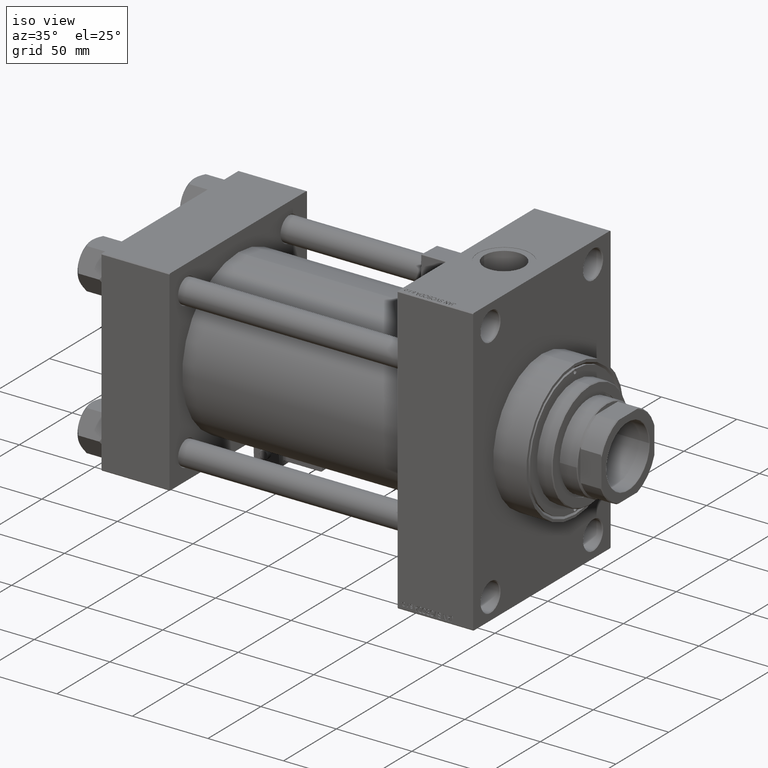
[diagram: clean part render]
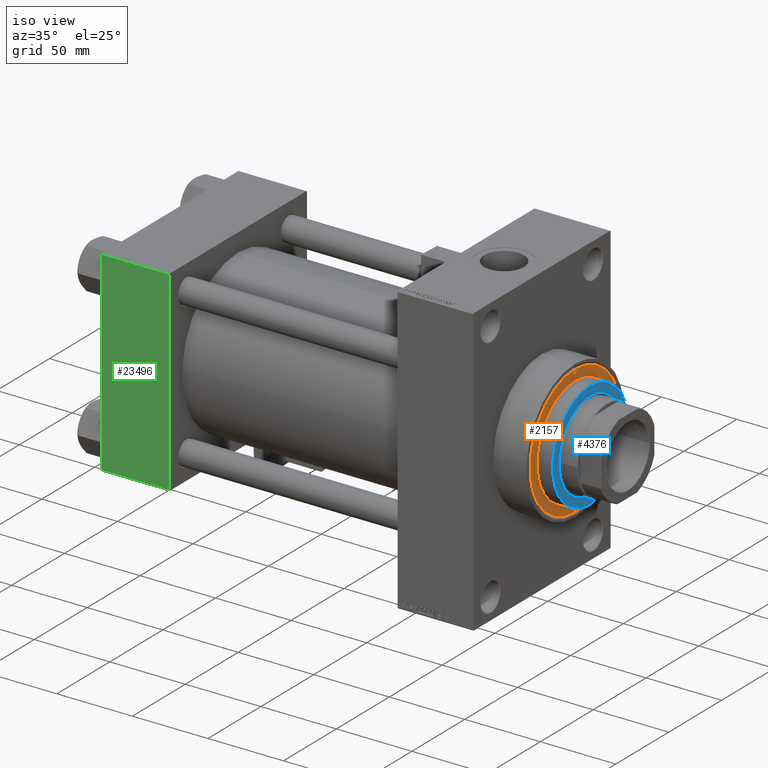
[diagram: same view with three faces highlighted in distinct colors, each labeled with its STEP entity id]
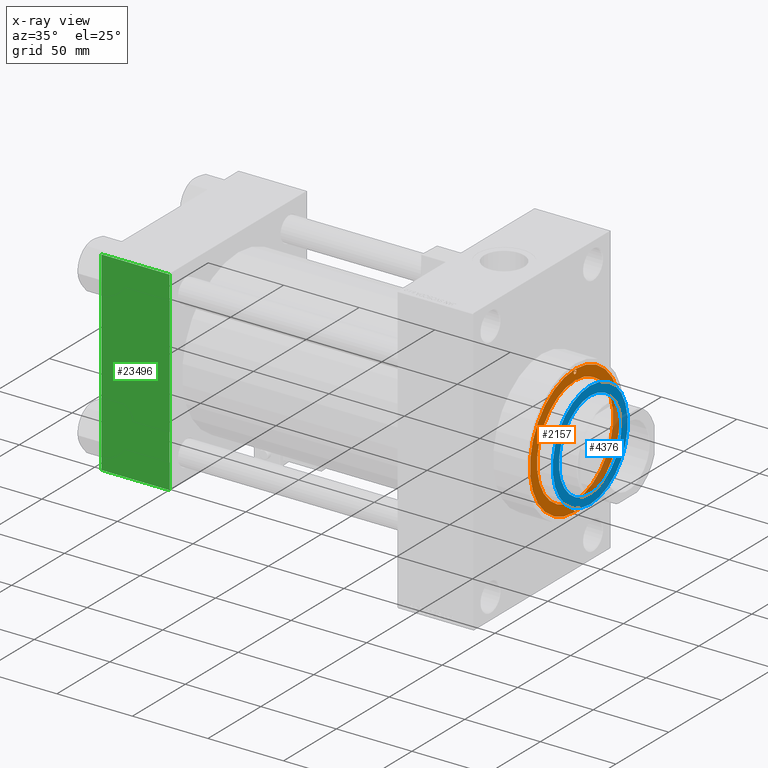
[diagram: x-ray of the same camera — body ghosted, the three highlighted faces saturated]
A machine part, iso view with three faces highlighted in distinct colors.
The next image is the same camera in x-ray (body ghosted, the three faces saturated) — at least one of them is partly hidden behind the body in this view.
Their STEP definitions:

[orange] entity #2157 — the highlighted planar face has unit normal (1, -0, -0).
#452 = CARTESIAN_POINT ( 'NONE',  ( -41.00000000000000000, 0.000000000000000000, 43.25999999999999801 ) ) ;
#1025 = FACE_BOUND ( 'NONE', #45578, .T. ) ;
#1088 = AXIS2_PLACEMENT_3D ( 'NONE', #1531, #9628, #36503 ) ;
#1391 = AXIS2_PLACEMENT_3D ( 'NONE', #6120, #41621, #34013 ) ;
#1531 = CARTESIAN_POINT ( 'NONE',  ( 0.000000000000000000, 0.000000000000000000, 43.25999999999999801 ) ) ;
#2157 = ADVANCED_FACE ( 'NONE', ( #9132, #8883, #1025, #31932 ), #47419, .T. ) ;
#2882 = EDGE_CURVE ( 'NONE', #6872, #46403, #11646, .T. ) ;
#2909 = CARTESIAN_POINT ( 'NONE',  ( 0.000000000000000000, 0.000000000000000000, 43.25999999999999801 ) ) ;
#3455 = EDGE_CURVE ( 'NONE', #20492, #46248, #14878, .T. ) ;
#4723 = DIRECTION ( 'NONE',  ( 1.000000000000000000, 0.000000000000000000, 0.000000000000000000 ) ) ;
#5813 = CIRCLE ( 'NONE', #23650, 42.75000000000000000 ) ;
#6120 = CARTESIAN_POINT ( 'NONE',  ( 0.000000000000000000, 0.000000000000000000, 43.25999999999999801 ) ) ;
#6872 = VERTEX_POINT ( 'NONE', #25089 ) ;
#7976 = AXIS2_PLACEMENT_3D ( 'NONE', #452, #15902, #36192 ) ;
#8465 = CARTESIAN_POINT ( 'NONE',  ( -42.75000000000000000, 0.000000000000000000, 43.25999999999999801 ) ) ;
#8786 = EDGE_CURVE ( 'NONE', #46403, #6872, #23204, .T. ) ;
#8883 = FACE_BOUND ( 'NONE', #12037, .T. ) ;
#9132 = FACE_BOUND ( 'NONE', #10177, .T. ) ;
#9628 = DIRECTION ( 'NONE',  ( 0.000000000000000000, 0.000000000000000000, 1.000000000000000000 ) ) ;
#10177 = EDGE_LOOP ( 'NONE', ( #15130, #34008 ) ) ;
#10585 = DIRECTION ( 'NONE',  ( -0.000000000000000000, -0.000000000000000000, 1.000000000000000000 ) ) ;
#11226 = DIRECTION ( 'NONE',  ( 1.000000000000000000, 0.000000000000000000, 0.000000000000000000 ) ) ;
#11344 = DIRECTION ( 'NONE',  ( 0.000000000000000000, 0.000000000000000000, 1.000000000000000000 ) ) ;
#11646 = CIRCLE ( 'NONE', #27043, 36.00000000000000000 ) ;
#12037 = EDGE_LOOP ( 'NONE', ( #13024, #34357 ) ) ;
#13024 = ORIENTED_EDGE ( 'NONE', *, *, #3455, .F. ) ;
#14500 = CARTESIAN_POINT ( 'NONE',  ( 42.75000000000000000, 5.235365066354935472E-15, 43.25999999999999801 ) ) ;
#14878 = CIRCLE ( 'NONE', #35107, 1.250000000000001110 ) ;
#15130 = ORIENTED_EDGE ( 'NONE', *, *, #26762, .F. ) ;
#15521 = EDGE_CURVE ( 'NONE', #46248, #20492, #15970, .T. ) ;
#15595 = DIRECTION ( 'NONE',  ( -0.000000000000000000, -0.000000000000000000, 1.000000000000000000 ) ) ;
#15902 = DIRECTION ( 'NONE',  ( -0.000000000000000000, -0.000000000000000000, 1.000000000000000000 ) ) ;
#15970 = CIRCLE ( 'NONE', #20868, 1.250000000000001110 ) ;
#16762 = CARTESIAN_POINT ( 'NONE',  ( 39.75000000000000000, 1.530808498934193050E-16, 43.25999999999999801 ) ) ;
#17339 = DIRECTION ( 'NONE',  ( 0.000000000000000000, 0.000000000000000000, 1.000000000000000000 ) ) ;
#17856 = EDGE_CURVE ( 'NONE', #47775, #32631, #5813, .T. ) ;
#18140 = EDGE_LOOP ( 'NONE', ( #24490, #32795 ) ) ;
#19820 = ORIENTED_EDGE ( 'NONE', *, *, #8786, .F. ) ;
#19888 = CARTESIAN_POINT ( 'NONE',  ( -41.00000000000000000, 0.000000000000000000, 43.25999999999999801 ) ) ;
#20492 = VERTEX_POINT ( 'NONE', #48688 ) ;
#20666 = DIRECTION ( 'NONE',  ( 0.000000000000000000, 0.000000000000000000, 1.000000000000000000 ) ) ;
#20868 = AXIS2_PLACEMENT_3D ( 'NONE', #30476, #30728, #11226 ) ;
#21668 = DIRECTION ( 'NONE',  ( 1.000000000000000000, 0.000000000000000000, 0.000000000000000000 ) ) ;
#22829 = CARTESIAN_POINT ( 'NONE',  ( -42.25000000000000000, 1.530808498934193050E-16, 43.25999999999999801 ) ) ;
#23011 = DIRECTION ( 'NONE',  ( 1.000000000000000000, 0.000000000000000000, 0.000000000000000000 ) ) ;
#23204 = CIRCLE ( 'NONE', #36153, 36.00000000000000000 ) ;
#23650 = AXIS2_PLACEMENT_3D ( 'NONE', #30845, #11344, #23011 ) ;
#24490 = ORIENTED_EDGE ( 'NONE', *, *, #17856, .T. ) ;
#25089 = CARTESIAN_POINT ( 'NONE',  ( -36.00000000000000000, 0.000000000000000000, 43.25999999999999801 ) ) ;
#26301 = CARTESIAN_POINT ( 'NONE',  ( 41.00000000000000000, 0.000000000000000000, 43.25999999999999801 ) ) ;
#26643 = CARTESIAN_POINT ( 'NONE',  ( 36.00000000000000000, 4.408728476930470856E-15, 43.25999999999999801 ) ) ;
#26750 = ORIENTED_EDGE ( 'NONE', *, *, #2882, .F. ) ;
#26762 = EDGE_CURVE ( 'NONE', #33851, #27849, #43410, .T. ) ;
#27043 = AXIS2_PLACEMENT_3D ( 'NONE', #2909, #17339, #21668 ) ;
#27191 = AXIS2_PLACEMENT_3D ( 'NONE', #19888, #15595, #28005 ) ;
#27849 = VERTEX_POINT ( 'NONE', #22829 ) ;
#28005 = DIRECTION ( 'NONE',  ( 1.000000000000000000, 0.000000000000000000, 0.000000000000000000 ) ) ;
#30476 = CARTESIAN_POINT ( 'NONE',  ( 41.00000000000000000, 0.000000000000000000, 43.25999999999999801 ) ) ;
#30728 = DIRECTION ( 'NONE',  ( -0.000000000000000000, -0.000000000000000000, 1.000000000000000000 ) ) ;
#30845 = CARTESIAN_POINT ( 'NONE',  ( 0.000000000000000000, 0.000000000000000000, 43.25999999999999801 ) ) ;
#30892 = CARTESIAN_POINT ( 'NONE',  ( -39.75000000000000000, 0.000000000000000000, 43.25999999999999801 ) ) ;
#31932 = FACE_OUTER_BOUND ( 'NONE', #18140, .T. ) ;
#32128 = EDGE_CURVE ( 'NONE', #32631, #47775, #43480, .T. ) ;
#32631 = VERTEX_POINT ( 'NONE', #14500 ) ;
#32795 = ORIENTED_EDGE ( 'NONE', *, *, #32128, .T. ) ;
#33851 = VERTEX_POINT ( 'NONE', #30892 ) ;
#34008 = ORIENTED_EDGE ( 'NONE', *, *, #35631, .F. ) ;
#34013 = DIRECTION ( 'NONE',  ( 1.000000000000000000, 0.000000000000000000, 0.000000000000000000 ) ) ;
#34357 = ORIENTED_EDGE ( 'NONE', *, *, #15521, .F. ) ;
#35107 = AXIS2_PLACEMENT_3D ( 'NONE', #26301, #10585, #41770 ) ;
#35631 = EDGE_CURVE ( 'NONE', #27849, #33851, #48489, .T. ) ;
#36153 = AXIS2_PLACEMENT_3D ( 'NONE', #40203, #20666, #4723 ) ;
#36192 = DIRECTION ( 'NONE',  ( 1.000000000000000000, 0.000000000000000000, 0.000000000000000000 ) ) ;
#36503 = DIRECTION ( 'NONE',  ( 1.000000000000000000, 0.000000000000000000, -0.000000000000000000 ) ) ;
#40203 = CARTESIAN_POINT ( 'NONE',  ( 0.000000000000000000, 0.000000000000000000, 43.25999999999999801 ) ) ;
#41621 = DIRECTION ( 'NONE',  ( 0.000000000000000000, 0.000000000000000000, 1.000000000000000000 ) ) ;
#41770 = DIRECTION ( 'NONE',  ( 1.000000000000000000, 0.000000000000000000, 0.000000000000000000 ) ) ;
#43410 = CIRCLE ( 'NONE', #27191, 1.250000000000001110 ) ;
#43480 = CIRCLE ( 'NONE', #1391, 42.75000000000000000 ) ;
#45578 = EDGE_LOOP ( 'NONE', ( #26750, #19820 ) ) ;
#46248 = VERTEX_POINT ( 'NONE', #16762 ) ;
#46403 = VERTEX_POINT ( 'NONE', #26643 ) ;
#47419 = PLANE ( 'NONE',  #1088 ) ;
#47775 = VERTEX_POINT ( 'NONE', #8465 ) ;
#48489 = CIRCLE ( 'NONE', #7976, 1.250000000000001110 ) ;
#48688 = CARTESIAN_POINT ( 'NONE',  ( 42.25000000000000000, 0.000000000000000000, 43.25999999999999801 ) ) ;

[blue] entity #4376 — the highlighted planar face has unit normal (1, -0, -0).
#2926 = EDGE_LOOP ( 'NONE', ( #11335, #36592 ) ) ;
#4282 = DIRECTION ( 'NONE',  ( 1.000000000000000000, 0.000000000000000000, 0.000000000000000000 ) ) ;
#4376 = ADVANCED_FACE ( 'NONE', ( #49204, #14450 ), #19247, .T. ) ;
#4443 = CARTESIAN_POINT ( 'NONE',  ( -35.50000000000001421, 0.000000000000000000, 53.26000000000000512 ) ) ;
#4791 = ORIENTED_EDGE ( 'NONE', *, *, #16386, .F. ) ;
#5885 = CIRCLE ( 'NONE', #12353, 29.50000000000000355 ) ;
#6346 = DIRECTION ( 'NONE',  ( 0.000000000000000000, 0.000000000000000000, 1.000000000000000000 ) ) ;
#7350 = DIRECTION ( 'NONE',  ( 1.000000000000000000, 0.000000000000000000, -0.000000000000000000 ) ) ;
#9980 = VERTEX_POINT ( 'NONE', #27974 ) ;
#11335 = ORIENTED_EDGE ( 'NONE', *, *, #49222, .T. ) ;
#11415 = DIRECTION ( 'NONE',  ( 0.000000000000000000, 0.000000000000000000, 1.000000000000000000 ) ) ;
#11871 = CARTESIAN_POINT ( 'NONE',  ( 35.50000000000001421, 4.378112306951788646E-15, 53.26000000000000512 ) ) ;
#12353 = AXIS2_PLACEMENT_3D ( 'NONE', #48940, #33968, #22569 ) ;
#13612 = CIRCLE ( 'NONE', #35478, 29.50000000000000355 ) ;
#14450 = FACE_OUTER_BOUND ( 'NONE', #2926, .T. ) ;
#14951 = DIRECTION ( 'NONE',  ( 1.000000000000000000, 0.000000000000000000, 0.000000000000000000 ) ) ;
#15688 = AXIS2_PLACEMENT_3D ( 'NONE', #45392, #23063, #7350 ) ;
#15700 = DIRECTION ( 'NONE',  ( 1.000000000000000000, 0.000000000000000000, 0.000000000000000000 ) ) ;
#16386 = EDGE_CURVE ( 'NONE', #9980, #32487, #5885, .T. ) ;
#19247 = PLANE ( 'NONE',  #15688 ) ;
#21793 = VERTEX_POINT ( 'NONE', #4443 ) ;
#22569 = DIRECTION ( 'NONE',  ( 1.000000000000000000, 0.000000000000000000, 0.000000000000000000 ) ) ;
#22572 = VERTEX_POINT ( 'NONE', #11871 ) ;
#23063 = DIRECTION ( 'NONE',  ( 0.000000000000000000, 0.000000000000000000, 1.000000000000000000 ) ) ;
#23328 = CIRCLE ( 'NONE', #37919, 35.50000000000001421 ) ;
#23562 = CARTESIAN_POINT ( 'NONE',  ( 0.000000000000000000, 0.000000000000000000, 53.26000000000000512 ) ) ;
#25040 = CIRCLE ( 'NONE', #38835, 35.50000000000001421 ) ;
#26372 = CARTESIAN_POINT ( 'NONE',  ( 0.000000000000000000, 0.000000000000000000, 53.26000000000000512 ) ) ;
#27974 = CARTESIAN_POINT ( 'NONE',  ( 29.50000000000000355, 0.000000000000000000, 53.26000000000000512 ) ) ;
#32487 = VERTEX_POINT ( 'NONE', #36066 ) ;
#33968 = DIRECTION ( 'NONE',  ( 0.000000000000000000, 0.000000000000000000, 1.000000000000000000 ) ) ;
#34661 = EDGE_CURVE ( 'NONE', #32487, #9980, #13612, .T. ) ;
#34764 = EDGE_CURVE ( 'NONE', #22572, #21793, #23328, .T. ) ;
#35478 = AXIS2_PLACEMENT_3D ( 'NONE', #26372, #6346, #14951 ) ;
#36044 = ORIENTED_EDGE ( 'NONE', *, *, #34661, .F. ) ;
#36066 = CARTESIAN_POINT ( 'NONE',  ( -29.50000000000000355, 3.612708057484692393E-15, 53.26000000000000512 ) ) ;
#36592 = ORIENTED_EDGE ( 'NONE', *, *, #34764, .T. ) ;
#37919 = AXIS2_PLACEMENT_3D ( 'NONE', #23562, #39029, #4282 ) ;
#38835 = AXIS2_PLACEMENT_3D ( 'NONE', #42591, #11415, #15700 ) ;
#39029 = DIRECTION ( 'NONE',  ( 0.000000000000000000, 0.000000000000000000, 1.000000000000000000 ) ) ;
#41120 = EDGE_LOOP ( 'NONE', ( #4791, #36044 ) ) ;
#42591 = CARTESIAN_POINT ( 'NONE',  ( 0.000000000000000000, 0.000000000000000000, 53.26000000000000512 ) ) ;
#45392 = CARTESIAN_POINT ( 'NONE',  ( 0.000000000000000000, 0.000000000000000000, 53.26000000000000512 ) ) ;
#48940 = CARTESIAN_POINT ( 'NONE',  ( 0.000000000000000000, 0.000000000000000000, 53.26000000000000512 ) ) ;
#49204 = FACE_BOUND ( 'NONE', #41120, .T. ) ;
#49222 = EDGE_CURVE ( 'NONE', #21793, #22572, #25040, .T. ) ;

[green] entity #23496 — the highlighted planar face has unit normal (0, 1, 0).
#1622 = EDGE_CURVE ( 'NONE', #21054, #22100, #5582, .T. ) ;
#4835 = VECTOR ( 'NONE', #6176, 1000.000000000000000 ) ;
#4947 = DIRECTION ( 'NONE',  ( 0.000000000000000000, 0.000000000000000000, -1.000000000000000000 ) ) ;
#5582 = LINE ( 'NONE', #21042, #40718 ) ;
#6176 = DIRECTION ( 'NONE',  ( -1.000000000000000000, 0.000000000000000000, 0.000000000000000000 ) ) ;
#7537 = CARTESIAN_POINT ( 'NONE',  ( 0.000000000000000000, -65.00000000000000000, -64.49999999999991473 ) ) ;
#9208 = VECTOR ( 'NONE', #30443, 1000.000000000000000 ) ;
#10415 = VERTEX_POINT ( 'NONE', #33019 ) ;
#11396 = CARTESIAN_POINT ( 'NONE',  ( 0.000000000000000000, -65.00000000000000000, 64.50000000000000000 ) ) ;
#11438 = LINE ( 'NONE', #22618, #9208 ) ;
#13043 = CARTESIAN_POINT ( 'NONE',  ( 45.00000000000000000, -65.00000000000000000, 65.00000000000000000 ) ) ;
#14379 = PLANE ( 'NONE',  #15743 ) ;
#14440 = ORIENTED_EDGE ( 'NONE', *, *, #50135, .T. ) ;
#14881 = DIRECTION ( 'NONE',  ( -0.000000000000000000, 1.000000000000000000, 0.000000000000000000 ) ) ;
#15249 = VECTOR ( 'NONE', #4947, 1000.000000000000000 ) ;
#15374 = DIRECTION ( 'NONE',  ( 0.000000000000000000, -0.000000000000000000, 1.000000000000000000 ) ) ;
#15743 = AXIS2_PLACEMENT_3D ( 'NONE', #22249, #14881, #15374 ) ;
#18077 = LINE ( 'NONE', #29738, #4835 ) ;
#21042 = CARTESIAN_POINT ( 'NONE',  ( 45.00000000000000000, -65.00000000000000000, -64.49999999999991473 ) ) ;
#21054 = VERTEX_POINT ( 'NONE', #7537 ) ;
#21624 = EDGE_LOOP ( 'NONE', ( #26097, #24840, #42716, #14440 ) ) ;
#22053 = EDGE_CURVE ( 'NONE', #47531, #21054, #11438, .T. ) ;
#22100 = VERTEX_POINT ( 'NONE', #28141 ) ;
#22249 = CARTESIAN_POINT ( 'NONE',  ( 45.00000000000000000, -65.00000000000000000, 65.00000000000000000 ) ) ;
#22618 = CARTESIAN_POINT ( 'NONE',  ( 0.000000000000000000, -65.00000000000000000, 65.00000000000000000 ) ) ;
#23496 = ADVANCED_FACE ( 'NONE', ( #50133 ), #14379, .F. ) ;
#24840 = ORIENTED_EDGE ( 'NONE', *, *, #1622, .T. ) ;
#26097 = ORIENTED_EDGE ( 'NONE', *, *, #22053, .T. ) ;
#28141 = CARTESIAN_POINT ( 'NONE',  ( 45.00000000000000000, -65.00000000000000000, -64.49999999999991473 ) ) ;
#29738 = CARTESIAN_POINT ( 'NONE',  ( 45.00000000000000000, -65.00000000000000000, 64.50000000000000000 ) ) ;
#30443 = DIRECTION ( 'NONE',  ( 0.000000000000000000, 0.000000000000000000, -1.000000000000000000 ) ) ;
#33019 = CARTESIAN_POINT ( 'NONE',  ( 45.00000000000000000, -65.00000000000000000, 64.50000000000000000 ) ) ;
#35005 = EDGE_CURVE ( 'NONE', #10415, #22100, #36378, .T. ) ;
#36378 = LINE ( 'NONE', #13043, #15249 ) ;
#36512 = DIRECTION ( 'NONE',  ( 1.000000000000000000, 0.000000000000000000, 0.000000000000000000 ) ) ;
#40718 = VECTOR ( 'NONE', #36512, 1000.000000000000000 ) ;
#42716 = ORIENTED_EDGE ( 'NONE', *, *, #35005, .F. ) ;
#47531 = VERTEX_POINT ( 'NONE', #11396 ) ;
#50133 = FACE_OUTER_BOUND ( 'NONE', #21624, .T. ) ;
#50135 = EDGE_CURVE ( 'NONE', #10415, #47531, #18077, .T. ) ;